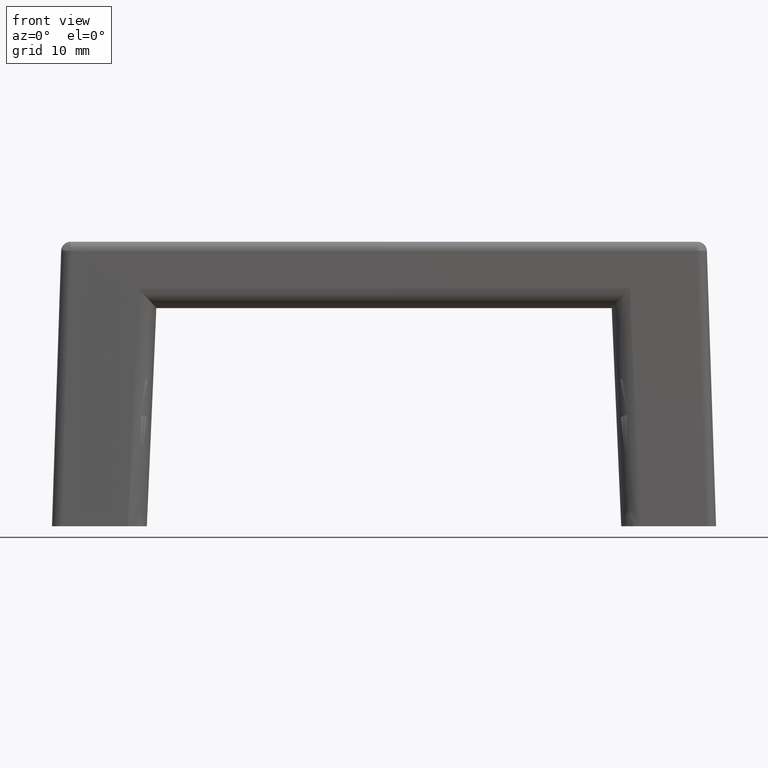
[diagram: clean part render]
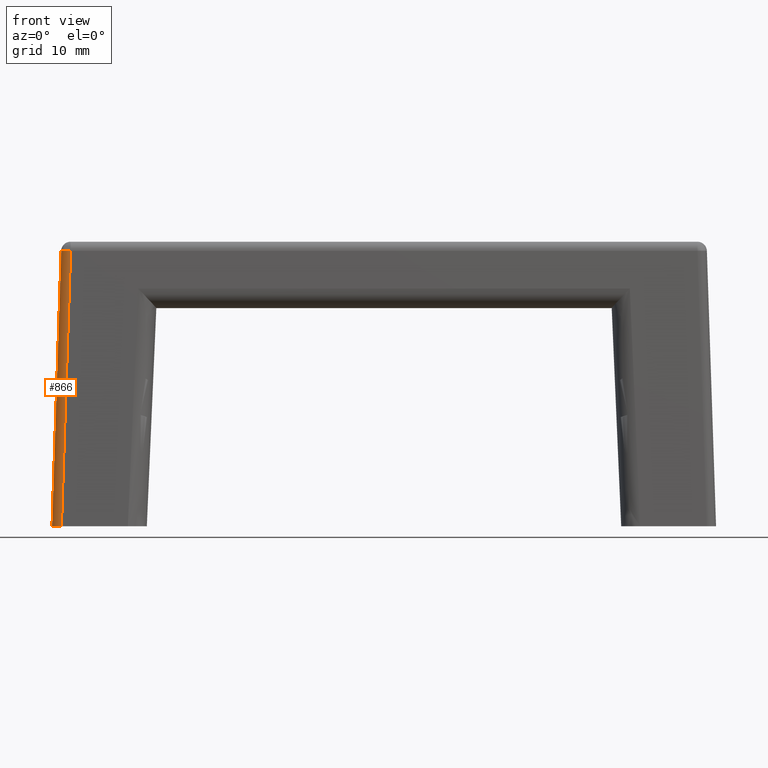
[diagram: same view with one face highlighted and labeled with its STEP entity id]
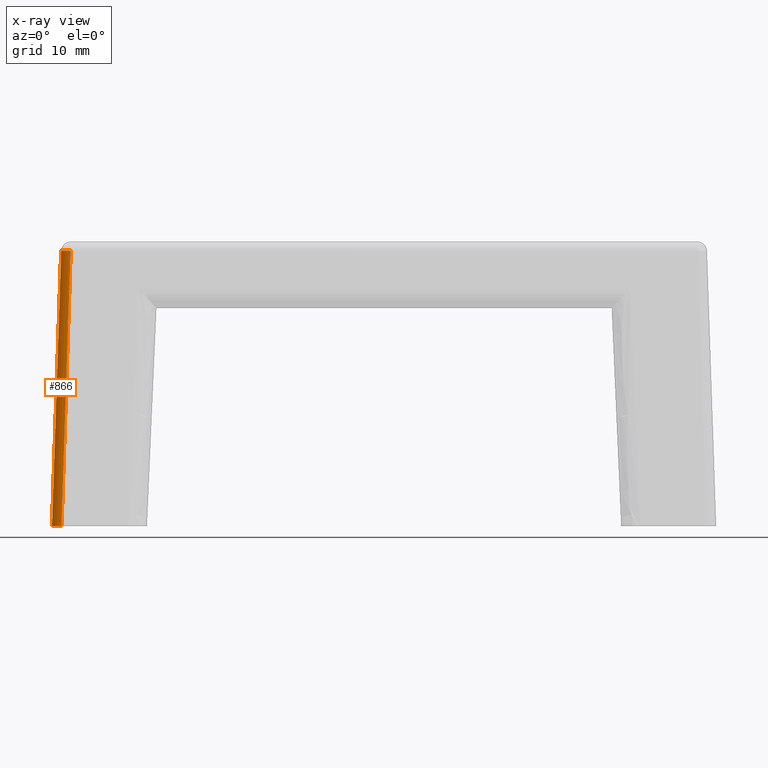
[diagram: x-ray of the same camera — body ghosted, the highlighted face saturated]
A machine part, front view. The second image highlights one B-rep face of the part: STEP entity #866.
The next image is the same camera in x-ray: the body ghosted, the highlighted face saturated — about 0% of this face is hidden behind the body in this view.
In plain terms, the highlighted face is a freeform B-spline surface patch.
Its self-contained STEP definition (entity closure, byte-faithful):
#806=CARTESIAN_POINT('',(-33.997949577328953,-6.024329049372680,-0.740869629409298));
#807=CARTESIAN_POINT('',(-32.980661079496549,-5.006830324531040,29.776734170515901));
#808=CARTESIAN_POINT('',(-35.098407514771189,-6.053146403515368,-0.703225624633128));
#809=CARTESIAN_POINT('',(-34.081119016938807,-5.035647678673721,29.814378175292074));
#810=CARTESIAN_POINT('',(-35.022273714288204,-4.954999792069003,-0.742377218060864));
#811=CARTESIAN_POINT('',(-34.004985216455793,-3.937501067227361,29.775226581864334));
#819=(BOUNDED_SURFACE()B_SPLINE_SURFACE(1,2,((#806,#808,#810),(#807,#809,#811)),.UNSPECIFIED.,.F.,.F.,.U.)B_SPLINE_SURFACE_WITH_KNOTS((2,2),(3,3),(0.0,30.551502765528340),(0.0,0.994481932426151),.UNSPECIFIED.)GEOMETRIC_REPRESENTATION_ITEM()RATIONAL_B_SPLINE_SURFACE(((1.0,0.670956366031088,0.996368629986029),(1.0,0.670956366031088,0.996368629986029)))REPRESENTATION_ITEM('')SURFACE());
#820=CARTESIAN_POINT('',(-34.000555360477847,-6.0,0.0));
#821=VERTEX_POINT('',#820);
#822=CARTESIAN_POINT('',(-35.0,-5.000555131204679,0.0));
#823=VERTEX_POINT('',#822);
#824=CARTESIAN_POINT('',(-34.000555360477890,-5.999999999999956,0.0));
#825=CARTESIAN_POINT('',(-35.000000000000092,-5.999999999999909,0.0));
#826=CARTESIAN_POINT('',(-35.000000000000043,-5.000555131204645,0.0));
#834=(BOUNDED_CURVE()B_SPLINE_CURVE(2,(#824,#825,#826),.UNSPECIFIED.,.F.,.U.)CURVE()GEOMETRIC_REPRESENTATION_ITEM()QUASI_UNIFORM_CURVE()RATIONAL_B_SPLINE_CURVE((1.0,0.707499181415883,1.0))REPRESENTATION_ITEM(''));
#835=EDGE_CURVE('',#821,#823,#834,.T.);
#836=ORIENTED_EDGE('',*,*,#835,.F.);
#837=CARTESIAN_POINT('',(-33.032744598317663,-5.031989235615800,29.033322853684751));
#838=VERTEX_POINT('',#837);
#839=CARTESIAN_POINT('',(-33.032744598317663,-5.031989235615800,29.033322853684751));
#840=CARTESIAN_POINT('',(-34.000555360477847,-6.0,0.0));
#841=QUASI_UNIFORM_CURVE('',1,(#839,#840),.UNSPECIFIED.,.F.,.U.);
#842=EDGE_CURVE('',#838,#821,#841,.T.);
#843=ORIENTED_EDGE('',*,*,#842,.F.);
#844=CARTESIAN_POINT('',(-34.032189467089196,-4.032544596117350,29.033315976440299));
#845=VERTEX_POINT('',#844);
#846=CARTESIAN_POINT('',(-33.032744598317663,-5.031989235615800,29.033322853684751));
#847=CARTESIAN_POINT('',(-34.031081130435318,-5.030880899216197,29.066564930843636));
#848=CARTESIAN_POINT('',(-34.032189467089196,-4.032544596117350,29.033315976440299));
#856=(BOUNDED_CURVE()B_SPLINE_CURVE(2,(#846,#847,#848),.UNSPECIFIED.,.F.,.U.)CURVE()GEOMETRIC_REPRESENTATION_ITEM()QUASI_UNIFORM_CURVE()RATIONAL_B_SPLINE_CURVE((1.0,0.707499181415903,1.0))REPRESENTATION_ITEM(''));
#857=EDGE_CURVE('',#838,#845,#856,.T.);
#858=ORIENTED_EDGE('',*,*,#857,.T.);
#859=CARTESIAN_POINT('',(-35.0,-5.000555131204679,0.0));
#860=CARTESIAN_POINT('',(-34.032189467089196,-4.032544596117350,29.033315976440299));
#861=QUASI_UNIFORM_CURVE('',1,(#859,#860),.UNSPECIFIED.,.F.,.U.);
#862=EDGE_CURVE('',#823,#845,#861,.T.);
#863=ORIENTED_EDGE('',*,*,#862,.F.);
#864=EDGE_LOOP('',(#836,#843,#858,#863));
#865=FACE_OUTER_BOUND('',#864,.T.);
#866=ADVANCED_FACE('',(#865),#819,.T.);